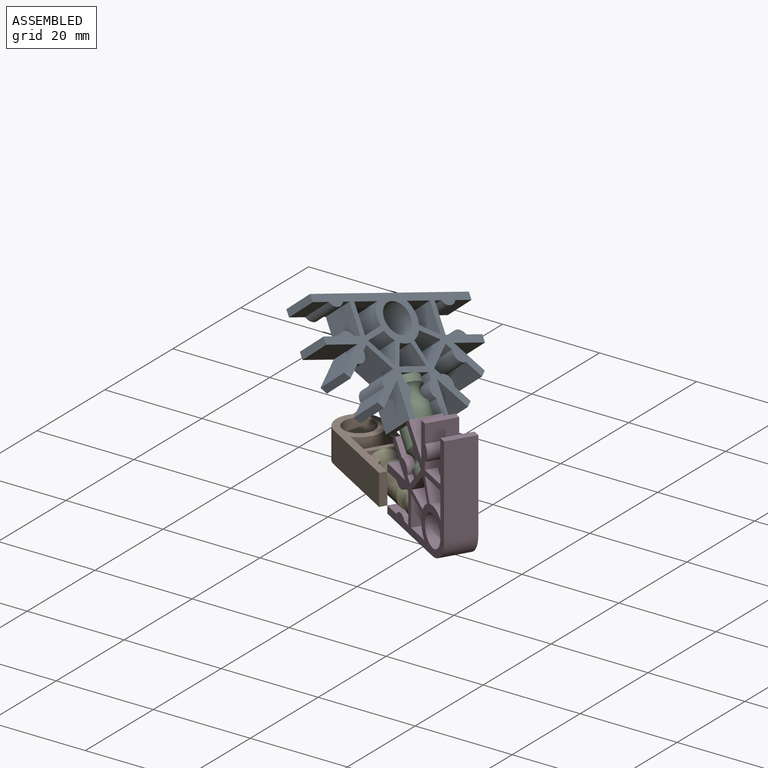
[diagram: assembled view]
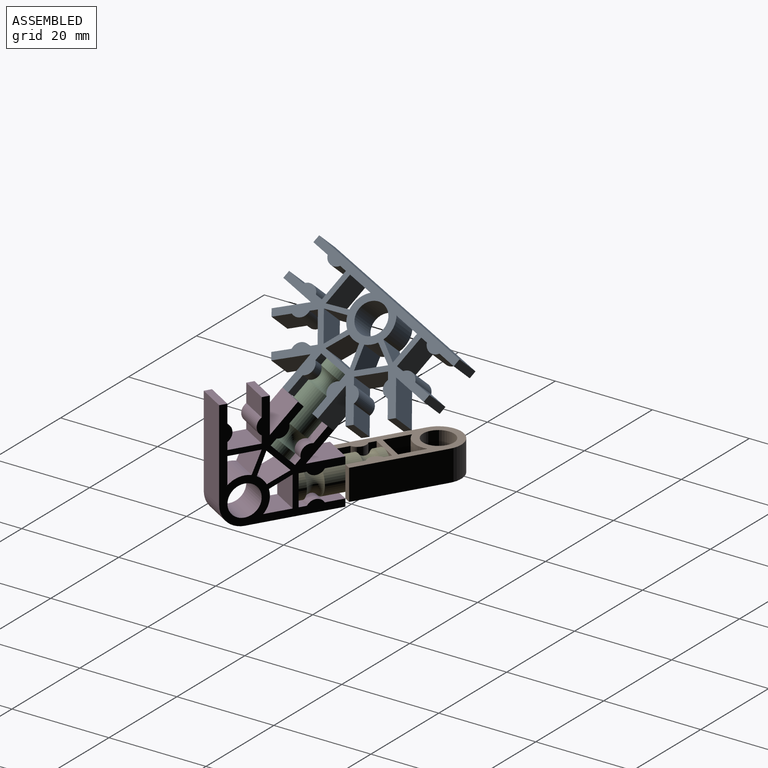
[diagram: assembled view, second angle]
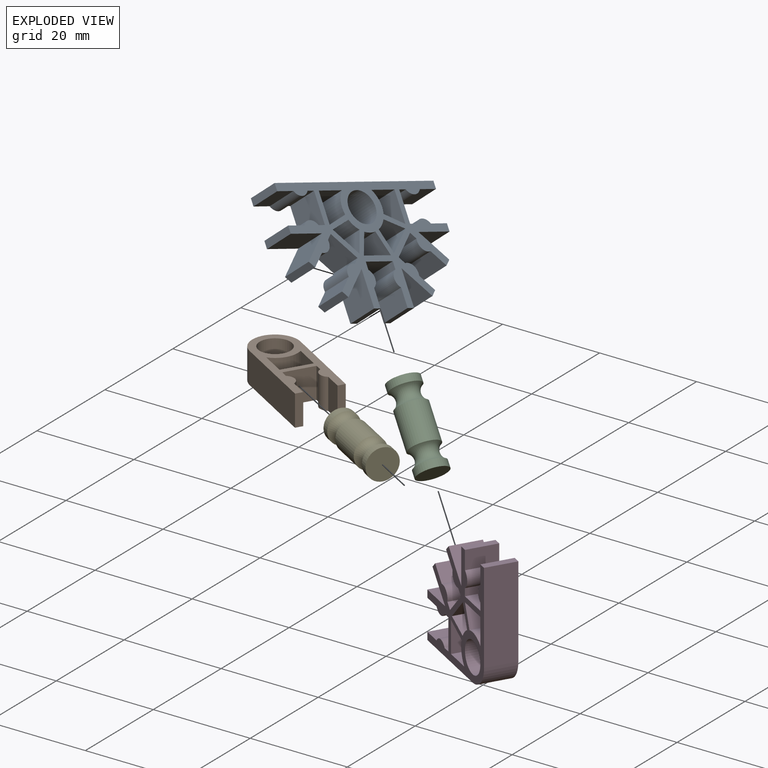
[diagram: exploded view]
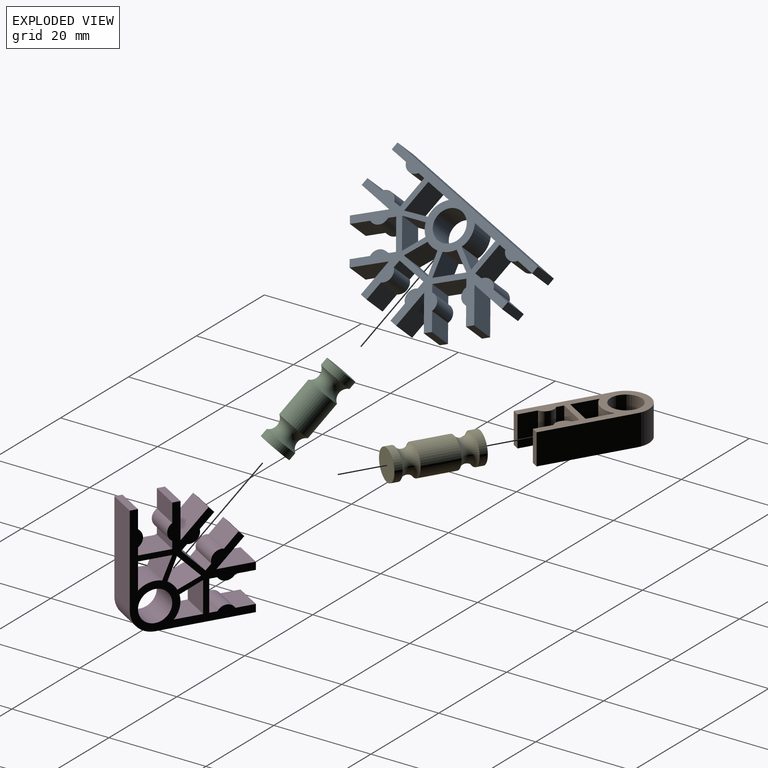
[diagram: exploded view, second angle]
ASSEMBLY  parts=5 mates=4
PART A: 79 faces, bbox 23.4x37.3x6.4 mm
  f0: plane 6.35x4.49mm, normal (-0.71,-0.71,0), area 40.3mm2, adj f1,f76,f77,f78
  f1: plane 6.35x4.42mm, normal (-0.37,0.93,0), area 30.3mm2, adj f0,f2,f77,f78
  f2: cylinder r=4.7mm len=6.35mm, axis (0,0,-1), area 16.9mm2, adj f1,f76,f77,f78
  f3: plane 6.35x4.39mm, normal (0.39,-0.92,0), area 30.3mm2, adj f4,f70,f77,f78
  f4: plane 6.35x6.35mm, normal (-1,0,0), area 40.3mm2, adj f3,f5,f77,f78
  f5: plane 6.35x4.39mm, normal (0.39,0.92,0), area 30.3mm2, adj f4,f70,f77,f78
  f6: plane 6.35x4.42mm, normal (-0.37,-0.93,0), area 30.3mm2, adj f7,f71,f77,f78
  f7: plane 6.35x4.49mm, normal (-0.71,0.71,0), area 40.3mm2, adj f6,f8,f77,f78
  f8: plane 6.35x4.42mm, normal (0.93,0.37,0), area 30.3mm2, adj f7,f71,f77,f78
  f9: plane 6.35x0.15mm, normal (0.71,0.71,0), area 1.3mm2, adj f10,f73,f77,f78
  f10: cylinder r=4.7mm len=6.35mm, axis (0,0,-1), area 31.9mm2, adj f9,f11,f77,f78
  f11: plane 6.35x4.39mm, normal (-0.92,-0.39,0), area 30.3mm2, adj f10,f12,f77,f78
  f12: plane 6.35x6.35mm, normal (0,1,0), area 40.3mm2, adj f11,f73,f77,f78
  f13: plane 6.35x5.43mm, normal (1,0,0), area 34.5mm2, adj f14,f74,f77,f78
  f14: plane 6.35x6.35mm, normal (0,-1,0), area 40.3mm2, adj f13,f15,f77,f78
  f15: plane 6.35x4.39mm, normal (-0.92,0.39,0), area 30.3mm2, adj f14,f16,f77,f78
  f16: cylinder r=4.7mm len=6.35mm, axis (0,0,-1), area 31.9mm2, adj f15,f74,f77,f78
  f17: plane 37.34x6.35mm, normal (-1,0,0), area 237.1mm2, adj f18,f75,f77,f78
  f18: plane 6.35x1.52mm, normal (0,-1,0), area 9.7mm2, adj f17,f19,f77,f78
  f19: plane 6.35x3.8mm, normal (1,0,0), area 24.1mm2, adj f18,f20,f77,f78
  f20: cylinder r=1.94mm len=6.35mm, axis (0,0,-1), area 25.4mm2, adj f19,f21,f77,f78
  f21: plane 6.35x1.52mm, normal (1,0,0), area 9.7mm2, adj f20,f22,f77,f78
  f22: plane 6.35x6.35mm, normal (0,-1,0), area 40.3mm2, adj f21,f23,f77,f78
  f23: plane 6.35x1.52mm, normal (-1,0,0), area 9.7mm2, adj f22,f24,f77,f78
  f24: cylinder r=1.94mm len=6.35mm, axis (0,0,-1), area 25.4mm2, adj f23,f25,f77,f78
  f25: plane 6.35x3.8mm, normal (-1,0,0), area 24.1mm2, adj f24,f26,f77,f78
  f26: plane 6.35x1.52mm, normal (0,-1,0), area 9.7mm2, adj f25,f27,f77,f78
  f27: plane 7.32x6.35mm, normal (1,0,0), area 46.5mm2, adj f26,f28,f77,f78
  f28: plane 6.35x5.18mm, normal (-0.71,-0.71,0), area 46.5mm2, adj f27,f29,f77,f78
  f29: plane 6.35x1.08mm, normal (0.71,-0.71,0), area 9.7mm2, adj f28,f30,f77,f78
  f30: plane 6.35x2.69mm, normal (0.71,0.71,0), area 24.1mm2, adj f29,f31,f77,f78
  f31: cylinder r=1.94mm len=6.35mm, axis (0,0,-1), area 25.4mm2, adj f30,f32,f77,f78
  f32: plane 6.35x1.08mm, normal (0.71,0.71,0), area 9.7mm2, adj f31,f33,f77,f78
  f33: plane 6.35x4.49mm, normal (0.71,-0.71,0), area 40.3mm2, adj f32,f34,f77,f78
  f34: plane 6.35x1.08mm, normal (-0.71,-0.71,0), area 9.7mm2, adj f33,f35,f77,f78
  f35: cylinder r=1.94mm len=6.35mm, axis (0,0,-1), area 25.4mm2, adj f34,f36,f77,f78
  f36: plane 6.35x2.69mm, normal (-0.71,-0.71,0), area 24.1mm2, adj f35,f37,f77,f78
  f37: plane 6.35x1.08mm, normal (0.71,-0.71,0), area 9.7mm2, adj f36,f38,f77,f78
  f38: plane 6.35x5.18mm, normal (0.71,0.71,0), area 46.5mm2, adj f37,f39,f77,f78
  f39: plane 7.32x6.35mm, normal (0,-1,0), area 46.5mm2, adj f38,f40,f77,f78
  f40: plane 6.35x1.52mm, normal (1,0,0), area 9.7mm2, adj f39,f41,f77,f78
  f41: plane 6.35x3.8mm, normal (0,1,0), area 24.1mm2, adj f40,f42,f77,f78
  f42: cylinder r=1.94mm len=6.35mm, axis (0,0,-1), area 25.4mm2, adj f41,f43,f77,f78
  f43: plane 6.35x1.52mm, normal (0,1,0), area 9.7mm2, adj f42,f44,f77,f78
  f44: plane 6.35x6.35mm, normal (1,0,0), area 40.3mm2, adj f43,f45,f77,f78
  f45: plane 6.35x1.52mm, normal (0,-1,0), area 9.7mm2, adj f44,f46,f77,f78
  f46: cylinder r=1.94mm len=6.35mm, axis (0,0,-1), area 25.4mm2, adj f45,f47,f77,f78
  f47: plane 6.35x3.8mm, normal (0,-1,0), area 24.1mm2, adj f46,f48,f77,f78
  f48: plane 6.35x1.52mm, normal (1,0,0), area 9.7mm2, adj f47,f49,f77,f78
  f49: plane 7.32x6.35mm, normal (0,1,0), area 46.5mm2, adj f48,f50,f77,f78
  f50: plane 6.35x5.18mm, normal (0.71,-0.71,0), area 46.5mm2, adj f49,f51,f77,f78
  f51: plane 6.35x1.08mm, normal (0.71,0.71,0), area 9.7mm2, adj f50,f52,f77,f78
  f52: plane 6.35x2.69mm, normal (-0.71,0.71,0), area 24.1mm2, adj f51,f53,f77,f78
  f53: cylinder r=1.94mm len=6.35mm, axis (0,0,-1), area 25.4mm2, adj f52,f54,f77,f78
  f54: plane 6.35x1.08mm, normal (-0.71,0.71,0), area 9.7mm2, adj f53,f55,f77,f78
  f55: plane 6.35x4.49mm, normal (0.71,0.71,0), area 40.3mm2, adj f54,f56,f77,f78
  f56: plane 6.35x1.08mm, normal (0.71,-0.71,0), area 9.7mm2, adj f55,f57,f77,f78
  f57: cylinder r=1.94mm len=6.35mm, axis (0,0,-1), area 25.4mm2, adj f56,f58,f77,f78
  f58: plane 6.35x2.69mm, normal (0.71,-0.71,0), area 24.1mm2, adj f57,f59,f77,f78
  f59: plane 6.35x1.08mm, normal (0.71,0.71,0), area 9.7mm2, adj f58,f60,f77,f78
  f60: plane 6.35x5.18mm, normal (-0.71,0.71,0), area 46.5mm2, adj f59,f61,f77,f78
  f61: plane 7.32x6.35mm, normal (1,0,0), area 46.5mm2, adj f60,f62,f77,f78
  f62: plane 6.35x1.52mm, normal (0,1,0), area 9.7mm2, adj f61,f63,f77,f78
  f63: plane 6.35x3.8mm, normal (-1,0,0), area 24.1mm2, adj f62,f64,f77,f78
  f64: cylinder r=1.94mm len=6.35mm, axis (0,0,-1), area 25.4mm2, adj f63,f65,f77,f78
  f65: plane 6.35x1.52mm, normal (-1,0,0), area 9.7mm2, adj f64,f66,f77,f78
  f66: plane 6.35x6.35mm, normal (0,1,0), area 40.3mm2, adj f65,f67,f77,f78
  f67: plane 6.35x1.52mm, normal (1,0,0), area 9.7mm2, adj f66,f68,f77,f78
  f68: cylinder r=1.94mm len=6.35mm, axis (0,0,-1), area 25.4mm2, adj f67,f69,f77,f78
  f69: plane 6.35x3.8mm, normal (1,0,0), area 24.1mm2, adj f68,f75,f77,f78
  f70: cylinder r=4.7mm len=6.35mm, axis (0,0,-1), area 16.9mm2, adj f3,f5,f77,f78
  f71: cylinder r=4.7mm len=6.35mm, axis (0,0,-1), area 16.9mm2, adj f6,f8,f77,f78
  f72: cylinder r=3.17mm len=6.35mm, axis (0,0,-1), area 126.7mm2, adj f77,f78
  f73: plane 6.35x5.43mm, normal (1,0,0), area 34.5mm2, adj f9,f12,f77,f78
  f74: plane 6.35x0.15mm, normal (0.71,-0.71,0), area 1.3mm2, adj f13,f16,f77,f78
  f75: plane 6.35x1.52mm, normal (0,1,0), area 9.7mm2, adj f17,f69,f77,f78
  f76: plane 6.35x4.42mm, normal (0.93,-0.37,0), area 30.3mm2, adj f0,f2,f77,f78
  f77: plane 37.34x23.37mm, normal (0,0,1), area 273.3mm2, adj f0,f1,f2,f3,f4,f5,f6,f7
  f78: plane 37.34x23.37mm, normal (0,0,-1), area 273.3mm2, adj f0,f1,f2,f3,f4,f5,f6,f7
PART B: 19 faces, bbox 9.4x23.4x6.4 mm
  f0: cylinder r=4.7mm len=6.35mm, axis (0,0,-1), area 44.3mm2, adj f1,f16,f17,f18
  f1: plane 6.35x5.44mm, normal (1,0,0), area 34.5mm2, adj f0,f2,f17,f18
  f2: plane 6.35x6.35mm, normal (0,-1,0), area 40.3mm2, adj f1,f16,f17,f18
  f3: plane 18.67x6.35mm, normal (-1,0,0), area 118.5mm2, adj f4,f14,f17,f18
  f4: cylinder r=4.7mm len=9.4mm, axis (0,0,-1), area 93.7mm2, adj f3,f5,f17,f18
  f5: plane 18.67x6.35mm, normal (1,0,0), area 118.5mm2, adj f4,f6,f17,f18
  f6: plane 6.35x1.52mm, normal (0,1,0), area 9.7mm2, adj f5,f7,f17,f18
  f7: plane 6.35x3.8mm, normal (-1,0,0), area 24.1mm2, adj f6,f8,f17,f18
  f8: cylinder r=1.94mm len=6.35mm, axis (0,0,-1), area 25.4mm2, adj f7,f9,f17,f18
  f9: plane 6.35x1.52mm, normal (-1,0,0), area 9.7mm2, adj f8,f10,f17,f18
  f10: plane 6.35x6.35mm, normal (0,1,0), area 40.3mm2, adj f9,f11,f17,f18
  f11: plane 6.35x1.52mm, normal (1,0,0), area 9.7mm2, adj f10,f12,f17,f18
  f12: cylinder r=1.94mm len=6.35mm, axis (0,0,-1), area 25.4mm2, adj f11,f13,f17,f18
  f13: plane 6.35x3.8mm, normal (1,0,0), area 24.1mm2, adj f12,f14,f17,f18
  f14: plane 6.35x1.52mm, normal (0,1,0), area 9.7mm2, adj f3,f13,f17,f18
  f15: cylinder r=3.17mm len=6.35mm, axis (0,0,-1), area 126.7mm2, adj f17,f18
  f16: plane 6.35x5.44mm, normal (-1,0,0), area 34.5mm2, adj f0,f2,f17,f18
  f17: plane 23.37x9.4mm, normal (0,0,1), area 98.8mm2, adj f0,f1,f2,f3,f4,f5,f6,f7
  f18: plane 23.37x9.4mm, normal (0,0,-1), area 98.8mm2, adj f0,f1,f2,f3,f4,f5,f6,f7
PART C: 7 faces, bbox 9x17.3x9 mm
  f0: plane 6.35x6.35mm, normal (0,1,0), area 31.7mm2, adj f1
  f1: cylinder r=3.17mm len=6.35mm, axis (0,-1,0), area 30.4mm2, adj f0,f2
  f2: torus R=4.18mm, axis (0,-1,0), area 64.3mm2, adj f1,f3
  f3: cylinder r=3.17mm len=7.59mm, axis (0,-1,0), area 151.5mm2, adj f2,f4
  f4: torus R=4.18mm, axis (0,-1,0), area 64.3mm2, adj f3,f5
  f5: cylinder r=3.17mm len=6.35mm, axis (0,-1,0), area 30.4mm2, adj f4,f6
  f6: plane 6.35x6.35mm, normal (0,-1,0), area 31.7mm2, adj f5
PART D: 51 faces, bbox 23.4x23.4x6.4 mm
  f0: cylinder r=4.7mm len=6.35mm, axis (0,0,-1), area 16.9mm2, adj f1,f48,f49,f50
  f1: plane 6.35x4.42mm, normal (0.93,-0.37,0), area 30.3mm2, adj f0,f2,f49,f50
  f2: plane 6.35x4.49mm, normal (-0.71,-0.71,0), area 40.3mm2, adj f1,f48,f49,f50
  f3: plane 6.35x4.39mm, normal (-0.92,0.39,0), area 30.3mm2, adj f4,f44,f49,f50
  f4: cylinder r=4.7mm len=6.35mm, axis (0,0,-1), area 31.9mm2, adj f3,f5,f49,f50
  f5: plane 6.35x0.15mm, normal (0.71,-0.71,0), area 1.3mm2, adj f4,f6,f49,f50
  f6: plane 6.35x5.43mm, normal (1,0,0), area 34.5mm2, adj f5,f44,f49,f50
  f7: cylinder r=4.7mm len=6.35mm, axis (0,0,-1), area 46.9mm2, adj f8,f45,f49,f50
  f8: plane 18.67x6.35mm, normal (0,-1,0), area 118.5mm2, adj f7,f9,f49,f50
  f9: plane 6.35x1.52mm, normal (1,0,0), area 9.7mm2, adj f8,f10,f49,f50
  f10: plane 6.35x3.8mm, normal (0,1,0), area 24.1mm2, adj f9,f11,f49,f50
  f11: cylinder r=1.94mm len=6.35mm, axis (0,0,-1), area 25.4mm2, adj f10,f12,f49,f50
  f12: plane 6.35x1.52mm, normal (0,1,0), area 9.7mm2, adj f11,f13,f49,f50
  f13: plane 6.35x6.35mm, normal (1,0,0), area 40.3mm2, adj f12,f14,f49,f50
  f14: plane 6.35x1.52mm, normal (0,-1,0), area 9.7mm2, adj f13,f15,f49,f50
  f15: cylinder r=1.94mm len=6.35mm, axis (0,0,-1), area 25.4mm2, adj f14,f16,f49,f50
  f16: plane 6.35x3.8mm, normal (0,-1,0), area 24.1mm2, adj f15,f17,f49,f50
  f17: plane 6.35x1.52mm, normal (1,0,0), area 9.7mm2, adj f16,f18,f49,f50
  f18: plane 7.32x6.35mm, normal (0,1,0), area 46.5mm2, adj f17,f19,f49,f50
  f19: plane 6.35x5.18mm, normal (0.71,-0.71,0), area 46.5mm2, adj f18,f20,f49,f50
  f20: plane 6.35x1.08mm, normal (0.71,0.71,0), area 9.7mm2, adj f19,f21,f49,f50
  f21: plane 6.35x2.69mm, normal (-0.71,0.71,0), area 24.1mm2, adj f20,f22,f49,f50
  f22: cylinder r=1.94mm len=6.35mm, axis (0,0,-1), area 25.4mm2, adj f21,f23,f49,f50
  f23: plane 6.35x1.08mm, normal (-0.71,0.71,0), area 9.7mm2, adj f22,f24,f49,f50
  f24: plane 6.35x4.49mm, normal (0.71,0.71,0), area 40.3mm2, adj f23,f25,f49,f50
  f25: plane 6.35x1.08mm, normal (0.71,-0.71,0), area 9.7mm2, adj f24,f26,f49,f50
  f26: cylinder r=1.94mm len=6.35mm, axis (0,0,-1), area 25.4mm2, adj f25,f27,f49,f50
  f27: plane 6.35x2.69mm, normal (0.71,-0.71,0), area 24.1mm2, adj f26,f28,f49,f50
  f28: plane 6.35x1.08mm, normal (0.71,0.71,0), area 9.7mm2, adj f27,f29,f49,f50
  f29: plane 6.35x5.18mm, normal (-0.71,0.71,0), area 46.5mm2, adj f28,f30,f49,f50
  f30: plane 7.32x6.35mm, normal (1,0,0), area 46.5mm2, adj f29,f31,f49,f50
  f31: plane 6.35x1.52mm, normal (0,1,0), area 9.7mm2, adj f30,f32,f49,f50
  f32: plane 6.35x3.8mm, normal (-1,0,0), area 24.1mm2, adj f31,f33,f49,f50
  f33: cylinder r=1.94mm len=6.35mm, axis (0,0,-1), area 25.4mm2, adj f32,f34,f49,f50
  f34: plane 6.35x1.52mm, normal (-1,0,0), area 9.7mm2, adj f33,f35,f49,f50
  f35: plane 6.35x6.35mm, normal (0,1,0), area 40.3mm2, adj f34,f36,f49,f50
  f36: plane 6.35x1.52mm, normal (1,0,0), area 9.7mm2, adj f35,f37,f49,f50
  f37: cylinder r=1.94mm len=6.35mm, axis (0,0,-1), area 25.4mm2, adj f36,f38,f49,f50
  f38: plane 6.35x3.8mm, normal (1,0,0), area 24.1mm2, adj f37,f39,f49,f50
  f39: plane 6.35x1.52mm, normal (0,1,0), area 9.7mm2, adj f38,f45,f49,f50
  f40: plane 6.35x0.15mm, normal (-0.71,0.71,0), area 1.3mm2, adj f41,f47,f49,f50
  f41: cylinder r=4.7mm len=6.35mm, axis (0,0,-1), area 31.9mm2, adj f40,f42,f49,f50
  f42: plane 6.35x4.39mm, normal (0.39,-0.92,0), area 30.3mm2, adj f41,f43,f49,f50
  f43: plane 6.35x6.35mm, normal (-1,0,0), area 40.3mm2, adj f42,f47,f49,f50
  f44: plane 6.35x6.35mm, normal (0,-1,0), area 40.3mm2, adj f3,f6,f49,f50
  f45: plane 18.67x6.35mm, normal (-1,0,0), area 118.5mm2, adj f7,f39,f49,f50
  f46: cylinder r=3.17mm len=6.35mm, axis (0,0,-1), area 126.7mm2, adj f49,f50
  f47: plane 6.35x5.43mm, normal (0,1,0), area 34.5mm2, adj f40,f43,f49,f50
  f48: plane 6.35x4.42mm, normal (-0.37,0.93,0), area 30.3mm2, adj f0,f2,f49,f50
  f49: plane 23.37x23.37mm, normal (0,0,1), area 186.1mm2, adj f0,f1,f2,f3,f4,f5,f6,f7
  f50: plane 23.37x23.37mm, normal (0,0,-1), area 186.1mm2, adj f0,f1,f2,f3,f4,f5,f6,f7
PART E: same geometry as C
PLACE A rot(axis=(0.9,-0.16,-0.41),170.4deg) t=(2.32,-14.73,22.02)mm
PLACE B rot(axis=(0,0,-1),120.8deg) t=(10.73,-1.34,-14.93)mm
PLACE C rot(axis=(-0.85,-0.11,-0.52),112.2deg) t=(15.43,-4.14,1.45)mm
PLACE D rot(axis=(0.19,0.69,0.69),158.4deg) t=(25.14,-13.62,6.92)mm
PLACE E rot(axis=(0,0,-1),120.8deg) t=(10.73,-1.34,-11.75)mm fixed
MATE fastened E.f1 <-> B.f10  axis (-0.86,0.51,0) through (3.3,3.09,-11.75)mm
MATE fastened C.f1 <-> D.f24  axis (0.61,-0.36,-0.71) through (20.68,-7.27,-4.67)mm
MATE fastened D.f13 <-> E.f1  axis (-0.86,0.51,0) through (18.16,-5.77,-11.75)mm
MATE revolute C.f1 <-> A.f44  axis (-0.61,0.36,0.71) through (10.17,-1.01,7.57)mm
